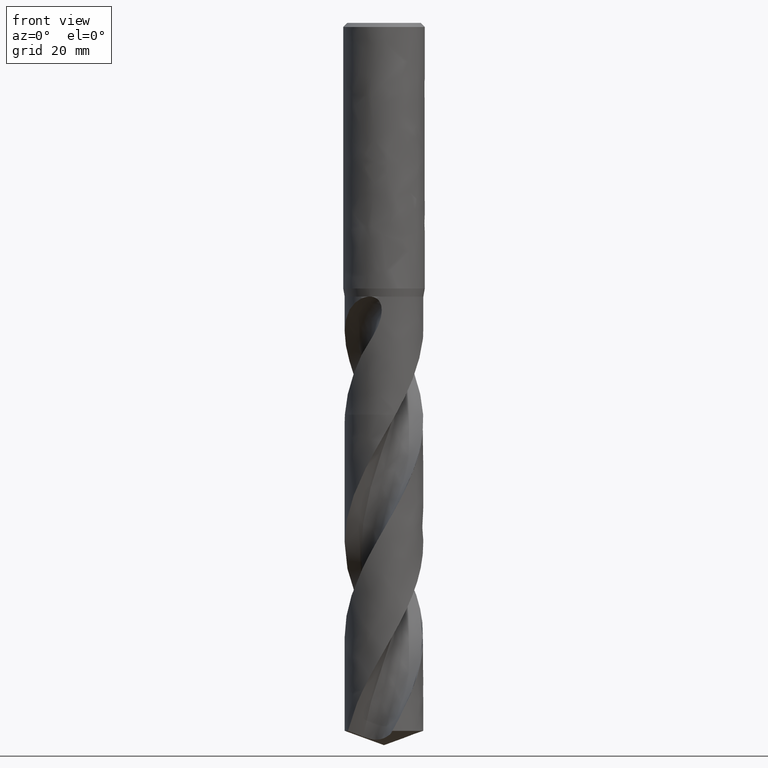
[diagram: clean part render]
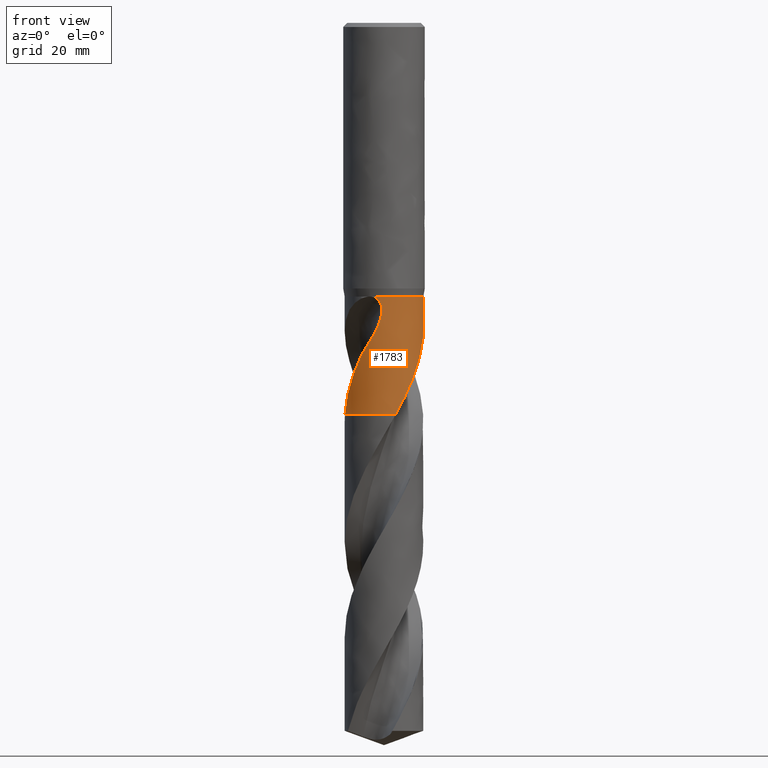
[diagram: same view with one face highlighted and labeled with its STEP entity id]
A machine part, front view. The second image highlights one B-rep face of the part: STEP entity #1783.
In plain terms, the highlighted face is a freeform B-spline surface patch.
Its self-contained STEP definition (entity closure, byte-faithful):
#201 = VERTEX_POINT('', #202);
#202 = CARTESIAN_POINT('', (-2.17123797644978, -6.39126166336681, -47.));
#212 = EDGE_CURVE('', #213, #201, #215, .T.);
#213 = VERTEX_POINT('', #214);
#214 = CARTESIAN_POINT('', (2.74245032595895, 6.16777643966184, -47.));
#215 = CIRCLE('', #216, 6.75);
#216 = AXIS2_PLACEMENT_3D('', #217, #218, #219);
#217 = CARTESIAN_POINT('', (1.76221774462768E-31, 2.87791997799628E-15, -47.));
#218 = DIRECTION('', (3.74939945665464E-33, 6.12323399573677E-17, -1.));
#219 = DIRECTION('', (-1., 6.12323399573677E-17, 0.));
#615 = VERTEX_POINT('', #616);
#616 = CARTESIAN_POINT('', (1.98991842690934, -6.45001741503437, -67.25));
#625 = VERTEX_POINT('', #626);
#626 = CARTESIAN_POINT('', (6.54722670223356, 1.64204826651347, -50.9853289528982));
#646 = EDGE_CURVE('', #625, #615, #647, .T.);
#647 = B_SPLINE_CURVE_WITH_KNOTS('', 3, (#648, #649, #650, #651, #652, #653, #654, #655, #656, #657, #658, #659, #660, #661, #662, #663, #664, #665, #666, #667, #668, #669, #670, #671, #672, #673, #674, #675, #676, #677, #678, #679, #680, #681, #682, #683, #684, #685, #686, #687, #688, #689, #690, #691, #692, #693, #694, #695, #696, #697, #698, #699, #700, #701, #702, #703, #704, #705, #706, #707, #708, #709, #710, #711, #712, #713, #714, #715, #716, #717, #718, #719, #720, #721, #722, #723, #724, #725, #726, #727, #728, #729, #730, #731, #732, #733, #734, #735, #736, #737, #738, #739, #740, #741, #742, #743, #744, #745, #746, #747, #748, #749, #750, #751, #752, #753, #754, #755, #756, #757, #758, #759, #760, #761, #762, #763, #764, #765, #766, #767, #768, #769, #770, #771, #772, #773, #774, #775, #776, #777), .UNSPECIFIED., .F., .U., (4, 3, 3, 3, 3, 3, 3, 3, 3, 3, 3, 3, 3, 3, 3, 3, 3, 3, 3, 3, 3, 3, 3, 3, 3, 3, 3, 3, 3, 3, 3, 3, 3, 3, 3, 3, 3, 3, 3, 3, 3, 3, 3, 4), (0., 0.441659259792527, 0.883358618652076, 1.32509893262151, 1.76688747682573, 2.20873352795271, 2.50366083464109, 2.63490343215148, 2.69327887594212, 3.13659202157276, 3.57992744371485, 4.02328826139101, 4.46667450764319, 4.91009479650226, 5.35355781797523, 5.79706087922181, 6.24059365971871, 6.90611624885697, 7.34966539350742, 7.79324669688905, 8.23690734077877, 8.68061047666921, 8.81200027509415, 9.10767917487095, 9.40329065552441, 9.69886873049771, 9.99444869020769, 10.1915153503296, 10.3885970723269, 11.0538396738529, 11.7188969532342, 12.3838767781517, 13.0488495814658, 13.7137935688705, 14.378673851582, 14.6742139156668, 15.33906726397, 15.7823476384415, 16.0778757002458, 17.0747419749422, 17.5179533065512, 18.5146207886474, 19.179196493635, 19.2558276770651), .UNSPECIFIED.);
#648 = CARTESIAN_POINT('', (6.54722670223356, 1.64204826651347, -50.9853289528982));
#649 = CARTESIAN_POINT('', (6.57033550230153, 1.54990812913318, -51.0978004345908));
#650 = CARTESIAN_POINT('', (6.59139075969727, 1.45771055317507, -51.2106655372283));
#651 = CARTESIAN_POINT('', (6.6104250138657, 1.36556989424147, -51.3238973873885));
#652 = CARTESIAN_POINT('', (6.62946099618953, 1.27342086968579, -51.4371395180793));
#653 = CARTESIAN_POINT('', (6.64647930102663, 1.18131073341557, -51.5507704620955));
#654 = CARTESIAN_POINT('', (6.66151691381575, 1.08935412375712, -51.6647680219585));
#655 = CARTESIAN_POINT('', (6.67655592091771, 0.99738898772666, -51.7787761518676));
#656 = CARTESIAN_POINT('', (6.68961661730424, 0.905560371151966, -51.8931726687468));
#657 = CARTESIAN_POINT('', (6.70074106521046, 0.813983523790398, -52.0079399957663));
#658 = CARTESIAN_POINT('', (6.71186672770977, 0.722396677855665, -52.1227198533494));
#659 = CARTESIAN_POINT('', (6.72105813464683, 0.6310433558927, -52.2378900716458));
#660 = CARTESIAN_POINT('', (6.72836352375575, 0.540022492302915, -52.3534243959934));
#661 = CARTESIAN_POINT('', (6.73566986379573, 0.448989780669897, -52.4689737592631));
#662 = CARTESIAN_POINT('', (6.74109095769716, 0.358273567187202, -52.5849075114671));
#663 = CARTESIAN_POINT('', (6.7446787187063, 0.26797197881563, -52.7012034428343));
#664 = CARTESIAN_POINT('', (6.74707350912882, 0.207696676637005, -52.7788296787811));
#665 = CARTESIAN_POINT('', (6.74865181309003, 0.147600393944889, -52.8566246804418));
#666 = CARTESIAN_POINT('', (6.74943008888581, 0.0877124577408922, -52.9345830601401));
#667 = CARTESIAN_POINT('', (6.74977642147252, 0.0610623370884393, -52.9692745248409));
#668 = CARTESIAN_POINT('', (6.74996435313332, 0.0344528442127917, -53.0039991784727));
#669 = CARTESIAN_POINT('', (6.74999539272162, 0.00788658588662205, -53.0387566173201));
#670 = CARTESIAN_POINT('', (6.75000919883165, -0.00392983004132642, -53.0542163914806));
#671 = CARTESIAN_POINT('', (6.74999196639971, -0.0157377471028731, -53.069682724052));
#672 = CARTESIAN_POINT('', (6.7499438306721, -0.0275369346806625, -53.0851555824996));
#673 = CARTESIAN_POINT('', (6.74957827968974, -0.11714199155621, -53.2026591268822));
#674 = CARTESIAN_POINT('', (6.74743004042985, -0.206249258950493, -53.3205513524663));
#675 = CARTESIAN_POINT('', (6.7435606767747, -0.29477007761681, -53.4388111320839));
#676 = CARTESIAN_POINT('', (6.73969111868381, -0.383295344459434, -53.5570768542623));
#677 = CARTESIAN_POINT('', (6.73409963328068, -0.471249222706473, -53.6757279061008));
#678 = CARTESIAN_POINT('', (6.72685094338631, -0.558548462949243, -53.7947437728565));
#679 = CARTESIAN_POINT('', (6.71960183826604, -0.645852703944759, -53.913766457185));
#680 = CARTESIAN_POINT('', (6.71069419161198, -0.732515570634826, -54.0331719560921));
#681 = CARTESIAN_POINT('', (6.70019650791113, -0.818453881031668, -54.1529441767806));
#682 = CARTESIAN_POINT('', (6.68969822212471, -0.904397120345932, -54.2727232669012));
#683 = CARTESIAN_POINT('', (6.67760823024899, -0.98962762748772, -54.3928870746367));
#684 = CARTESIAN_POINT('', (6.66399946250878, -1.07406292352128, -54.5134232395114));
#685 = CARTESIAN_POINT('', (6.65038964990546, -1.15850470238469, -54.6339686589928));
#686 = CARTESIAN_POINT('', (6.63525871391712, -1.24216561566307, -54.754901523933));
#687 = CARTESIAN_POINT('', (6.61867959298266, -1.32498318685007, -54.8761995941006));
#688 = CARTESIAN_POINT('', (6.6020988743108, -1.40780873920388, -54.9975093538181));
#689 = CARTESIAN_POINT('', (6.58406738723874, -1.4898020924944, -55.1192006386028));
#690 = CARTESIAN_POINT('', (6.56466072067571, -1.57090089516108, -55.2412556084158));
#691 = CARTESIAN_POINT('', (6.54525230190675, -1.65200702014673, -55.3633215984337));
#692 = CARTESIAN_POINT('', (6.52446583364698, -1.7322290831982, -55.4857670195569));
#693 = CARTESIAN_POINT('', (6.50238100718414, -1.81150248065289, -55.6085798244448));
#694 = CARTESIAN_POINT('', (6.48029470081159, -1.89078119023763, -55.7314008590493));
#695 = CARTESIAN_POINT('', (6.45690756971993, -1.96911941654286, -55.8546056997145));
#696 = CARTESIAN_POINT('', (6.4323021382924, -2.04645772048184, -55.9781827394591));
#697 = CARTESIAN_POINT('', (6.39538159678886, -2.1625041336001, -56.1636105478766));
#698 = CARTESIAN_POINT('', (6.35570925811324, -2.27632390694716, -56.3499176353156));
#699 = CARTESIAN_POINT('', (6.31357004745634, -2.38774648065119, -56.5370610709777));
#700 = CARTESIAN_POINT('', (6.28548563507401, -2.46200599951315, -56.6617860798198));
#701 = CARTESIAN_POINT('', (6.25630173093824, -2.53521209414286, -56.786900202036));
#702 = CARTESIAN_POINT('', (6.22610414195687, -2.60732184693573, -56.9123905497245));
#703 = CARTESIAN_POINT('', (6.19590436355375, -2.67943682791624, -57.0378899958645));
#704 = CARTESIAN_POINT('', (6.16468740433478, -2.75046415303915, -57.1637785453494));
#705 = CARTESIAN_POINT('', (6.13252804167253, -2.82039001170069, -57.2900277345051));
#706 = CARTESIAN_POINT('', (6.10036292687385, -2.89032837754661, -57.4162995050337));
#707 = CARTESIAN_POINT('', (6.06725118333088, -2.9591725210097, -57.5429447149728));
#708 = CARTESIAN_POINT('', (6.03328024355398, -3.02688445480538, -57.6699549465762));
#709 = CARTESIAN_POINT('', (5.9993060501795, -3.09460287377295, -57.7969773426998));
#710 = CARTESIAN_POINT('', (5.96446848862411, -3.16119589849242, -57.9243772178282));
#711 = CARTESIAN_POINT('', (5.92887693965792, -3.2265954556458, -58.0521694662872));
#712 = CARTESIAN_POINT('', (5.91833753602058, -3.24596163527449, -58.0900114295441));
#713 = CARTESIAN_POINT('', (5.90773200379999, -3.26522331433245, -58.1278886749834));
#714 = CARTESIAN_POINT('', (5.89706368432558, -3.28437816077996, -58.165802009613));
#715 = CARTESIAN_POINT('', (5.87305575522854, -3.32748412479612, -58.2511219751243));
#716 = CARTESIAN_POINT('', (5.84873081932889, -3.37004754198569, -58.3366292229553));
#717 = CARTESIAN_POINT('', (5.8241084351836, -3.41207575168303, -58.422311012717));
#718 = CARTESIAN_POINT('', (5.79949166530281, -3.4540943783325, -58.5079732657747));
#719 = CARTESIAN_POINT('', (5.77457688417877, -3.49557976171808, -58.5938135115919));
#720 = CARTESIAN_POINT('', (5.74936219134844, -3.53657099358871, -58.679799034321));
#721 = CARTESIAN_POINT('', (5.72415034791342, -3.57755759323066, -58.7657748402256));
#722 = CARTESIAN_POINT('', (5.69863798037958, -3.61805177374847, -58.8518989676546));
#723 = CARTESIAN_POINT('', (5.67279758801343, -3.65812349783725, -58.9381190850952));
#724 = CARTESIAN_POINT('', (5.6469570308775, -3.69819547744108, -59.0243397523134));
#725 = CARTESIAN_POINT('', (5.62078778382959, -3.73784650116007, -59.1106589873538));
#726 = CARTESIAN_POINT('', (5.59423402847128, -3.77717429233733, -59.1970055235641));
#727 = CARTESIAN_POINT('', (5.57653032525916, -3.80339459653142, -59.254573781983));
#728 = CARTESIAN_POINT('', (5.55865484651865, -3.82947219293634, -59.3121546414066));
#729 = CARTESIAN_POINT('', (5.54058381690969, -3.85544173445773, -59.3697224330863));
#730 = CARTESIAN_POINT('', (5.52251140612547, -3.88141326084048, -59.427294624693));
#731 = CARTESIAN_POINT('', (5.5042385259721, -3.90728339653807, -59.4848500727084));
#732 = CARTESIAN_POINT('', (5.48576406058995, -3.93305131819299, -59.5423861292558));
#733 = CARTESIAN_POINT('', (5.42340413553924, -4.02003005505358, -59.736597117222));
#734 = CARTESIAN_POINT('', (5.35875873263365, -4.10582403916798, -59.9306221165307));
#735 = CARTESIAN_POINT('', (5.29193931840753, -4.19021219633235, -60.1244926237717));
#736 = CARTESIAN_POINT('', (5.22513851861939, -4.27457684478843, -60.3183091228988));
#737 = CARTESIAN_POINT('', (5.15615686244505, -4.35754868076348, -60.5119977947778));
#738 = CARTESIAN_POINT('', (5.0850720288435, -4.43897988973519, -60.7055448968811));
#739 = CARTESIAN_POINT('', (5.01399547398401, -4.52040161499651, -60.899069457938));
#740 = CARTESIAN_POINT('', (4.94080122711018, -4.60030129056725, -61.0924745667885));
#741 = CARTESIAN_POINT('', (4.86554500459517, -4.67856514417177, -61.2857215587941));
#742 = CARTESIAN_POINT('', (4.79028957671982, -4.75682817137867, -61.4789665102811));
#743 = CARTESIAN_POINT('', (4.71296166817493, -4.83346616342799, -61.6720808443089));
#744 = CARTESIAN_POINT('', (4.63362794120483, -4.9083594104839, -61.8650296806307));
#745 = CARTESIAN_POINT('', (4.55429765207981, -4.98324941211834, -62.057970155714));
#746 = CARTESIAN_POINT('', (4.47294814113563, -5.05640659172576, -62.2507716439872));
#747 = CARTESIAN_POINT('', (4.38968789988598, -5.12768370139916, -62.4434245440602));
#748 = CARTESIAN_POINT('', (4.30643563535051, -5.19895398239753, -62.6360589870989));
#749 = CARTESIAN_POINT('', (4.22126108481105, -5.26835455906016, -62.8285733101865));
#750 = CARTESIAN_POINT('', (4.13429062848189, -5.33574184151059, -63.0209622782657));
#751 = CARTESIAN_POINT('', (4.09563215882149, -5.36569556745457, -63.1064793998194));
#752 = CARTESIAN_POINT('', (4.05661763372699, -5.39525275625711, -63.1919761295374));
#753 = CARTESIAN_POINT('', (4.01725746630399, -5.42440249699677, -63.277450984837));
#754 = CARTESIAN_POINT('', (3.92871197863214, -5.48997838699649, -63.4697370761244));
#755 = CARTESIAN_POINT('', (3.83839763898776, -5.5535044477366, -63.6619268577205));
#756 = CARTESIAN_POINT('', (3.746488930802, -5.61483042409813, -63.854037127154));
#757 = CARTESIAN_POINT('', (3.68521026433254, -5.65571854150892, -63.982123587712));
#758 = CARTESIAN_POINT('', (3.62321996769768, -5.69563081614675, -64.1101867890969));
#759 = CARTESIAN_POINT('', (3.56059813879968, -5.73451313486822, -64.2382482053169));
#760 = CARTESIAN_POINT('', (3.51884914925119, -5.76043536592551, -64.3236247396887));
#761 = CARTESIAN_POINT('', (3.47682056963268, -5.78589937425845, -64.4090053669799));
#762 = CARTESIAN_POINT('', (3.43453388991661, -5.81089295711203, -64.494394185612));
#763 = CARTESIAN_POINT('', (3.29189374731736, -5.89520055104561, -64.7824251529954));
#764 = CARTESIAN_POINT('', (3.14626566968931, -5.97418626825024, -65.0705983878582));
#765 = CARTESIAN_POINT('', (2.99798799832654, -6.04769112652837, -65.3587417321024));
#766 = CARTESIAN_POINT('', (2.9320630635176, -6.08037172466287, -65.4868515884977));
#767 = CARTESIAN_POINT('', (2.86560441999081, -6.111974034321, -65.6149675208223));
#768 = CARTESIAN_POINT('', (2.79863892179458, -6.14248485430908, -65.7430728124562));
#769 = CARTESIAN_POINT('', (2.64805086207087, -6.21109578540558, -66.0311484309032));
#770 = CARTESIAN_POINT('', (2.49487319878219, -6.2741935314925, -66.3192477116871));
#771 = CARTESIAN_POINT('', (2.33961420930109, -6.3315642104962, -66.6073015901836));
#772 = CARTESIAN_POINT('', (2.23608785347674, -6.36981885422583, -66.7993752885986));
#773 = CARTESIAN_POINT('', (2.13162123096658, -6.40553414951849, -66.9914669966747));
#774 = CARTESIAN_POINT('', (2.02636238492351, -6.43866100093545, -67.1835519174385));
#775 = CARTESIAN_POINT('', (2.01422515228284, -6.44248080627643, -67.2057009287351));
#776 = CARTESIAN_POINT('', (2.00207680632446, -6.44626638900099, -67.2278508319766));
#777 = CARTESIAN_POINT('', (1.98991842690934, -6.45001741503437, -67.25));
#1012 = EDGE_CURVE('', #625, #213, #1013, .T.);
#1013 = B_SPLINE_CURVE_WITH_KNOTS('', 3, (#1014, #1015, #1016, #1017, #1018, #1019, #1020, #1021, #1022, #1023, #1024, #1025, #1026, #1027, #1028, #1029, #1030, #1031, #1032, #1033, #1034, #1035, #1036, #1037, #1038, #1039, #1040, #1041, #1042, #1043, #1044, #1045, #1046, #1047, #1048, #1049, #1050, #1051, #1052, #1053, #1054, #1055, #1056, #1057, #1058, #1059, #1060, #1061, #1062, #1063, #1064, #1065, #1066, #1067, #1068, #1069, #1070, #1071), .UNSPECIFIED., .F., .U., (4, 3, 3, 3, 3, 3, 3, 3, 3, 3, 3, 3, 3, 3, 3, 3, 3, 3, 3, 4), (0., 0.447005675161445, 0.894185619436534, 1.34151582994481, 1.78897778587421, 2.23655197864527, 2.6842086120813, 3.13192121736932, 3.57966739757167, 4.02742049961438, 4.47514763869664, 4.92280671514512, 5.37034191744389, 5.66765224759956, 5.96487297666361, 6.26197587823821, 6.55892470282941, 6.8556727072708, 7.15215970033951, 7.45692063994907), .UNSPECIFIED.);
#1014 = CARTESIAN_POINT('', (6.54722670223356, 1.64204826651348, -50.9853289528982));
#1015 = CARTESIAN_POINT('', (6.52383816333729, 1.73530378738379, -50.871495970807));
#1016 = CARTESIAN_POINT('', (6.49805232952242, 1.82967051163066, -50.7590243652782));
#1017 = CARTESIAN_POINT('', (6.46970892616913, 1.92493283276297, -50.6480139811013));
#1018 = CARTESIAN_POINT('', (6.44135447288951, 2.02023229275321, -50.5369603185448));
#1019 = CARTESIAN_POINT('', (6.41042866490252, 2.11646671921944, -50.4273199216285));
#1020 = CARTESIAN_POINT('', (6.37678460914436, 2.21339514063379, -50.3191911248318));
#1021 = CARTESIAN_POINT('', (6.34312924794733, 2.31035613298287, -50.2110259934294));
#1022 = CARTESIAN_POINT('', (6.30673833457635, 2.40805596596319, -50.1043238123564));
#1023 = CARTESIAN_POINT('', (6.2674758259275, 2.5062415628619, -49.9991959996608));
#1024 = CARTESIAN_POINT('', (6.22820175388406, 2.60445607688381, -49.8940372252558));
#1025 = CARTESIAN_POINT('', (6.18603491741344, 2.70320515293543, -49.790401652276));
#1026 = CARTESIAN_POINT('', (6.14085072235636, 2.80222276161941, -49.688417275917));
#1027 = CARTESIAN_POINT('', (6.09565519375175, 2.90126520688116, -49.5864073188261));
#1028 = CARTESIAN_POINT('', (6.04741614879518, 3.00063003343426, -49.485995281843));
#1029 = CARTESIAN_POINT('', (5.99602227382602, 3.10003498234869, -49.3873271569904));
#1030 = CARTESIAN_POINT('', (5.94461893239232, 3.19945824109917, -49.2886408580205));
#1031 = CARTESIAN_POINT('', (5.89003033678812, 3.29897772345852, -49.1916389227777));
#1032 = CARTESIAN_POINT('', (5.83216335795116, 3.39828935880637, -49.0964817615112));
#1033 = CARTESIAN_POINT('', (5.77428914383223, 3.49761341138595, -49.0013127024593));
#1034 = CARTESIAN_POINT('', (5.71309861062836, 3.59679313478255, -48.9079277478441));
#1035 = CARTESIAN_POINT('', (5.64851279380134, 3.69551122556307, -48.8165206764602));
#1036 = CARTESIAN_POINT('', (5.58392213354743, 3.79423671942182, -48.725106750267));
#1037 = CARTESIAN_POINT('', (5.51588995973561, 3.89257019230152, -48.6356061370521));
#1038 = CARTESIAN_POINT('', (5.44435316938206, 3.99017776133339, -48.5482537900581));
#1039 = CARTESIAN_POINT('', (5.37281527312016, 4.08778683930947, -48.4609000926584));
#1040 = CARTESIAN_POINT('', (5.29771621088348, 4.18474670410529, -48.3756255492759));
#1041 = CARTESIAN_POINT('', (5.21901158006885, 4.28070299449837, -48.2927169093362));
#1042 = CARTESIAN_POINT('', (5.14031151294168, 4.37665372086663, -48.2098130768534));
#1043 = CARTESIAN_POINT('', (5.05793629823484, 4.47168589548326, -48.1292007283162));
#1044 = CARTESIAN_POINT('', (4.97186494167331, 4.56541991516223, -48.0512331515216));
#1045 = CARTESIAN_POINT('', (4.88580666951678, 4.65913968557262, -47.9732774272106));
#1046 = CARTESIAN_POINT('', (4.79596590011326, 4.75165631556474, -47.8978858022151));
#1047 = CARTESIAN_POINT('', (4.70235297370281, 4.8425588804586, -47.8254989233641));
#1048 = CARTESIAN_POINT('', (4.6087659514285, 4.93343629121502, -47.7531320750756));
#1049 = CARTESIAN_POINT('', (4.51129825753647, 5.02280692739476, -47.6836818578372));
#1050 = CARTESIAN_POINT('', (4.41000527842591, 5.11022048881021, -47.6177061280667));
#1051 = CARTESIAN_POINT('', (4.34271347901633, 5.16829179732631, -47.5738765792411));
#1052 = CARTESIAN_POINT('', (4.27368461828996, 5.22554217842249, -47.5315496124812));
#1053 = CARTESIAN_POINT('', (4.20295108385998, 5.2818275423077, -47.4909267444121));
#1054 = CARTESIAN_POINT('', (4.13223886655644, 5.33809594334455, -47.4503161189493));
#1055 = CARTESIAN_POINT('', (4.05977385982401, 5.39343871954625, -47.4113801304974));
#1056 = CARTESIAN_POINT('', (3.98560704696646, 5.44770010804297, -47.3743590672945));
#1057 = CARTESIAN_POINT('', (3.91146963612736, 5.50193998564708, -47.3373526803861));
#1058 = CARTESIAN_POINT('', (3.83557245849918, 5.55514229974721, -47.3022298506109));
#1059 = CARTESIAN_POINT('', (3.75799298562601, 5.60713730168842, -47.2692793143132));
#1060 = CARTESIAN_POINT('', (3.68045374531566, 5.65910533912337, -47.2363458660992));
#1061 = CARTESIAN_POINT('', (3.60116138117259, 5.70991533084473, -47.2055513822662));
#1062 = CARTESIAN_POINT('', (3.52023206356116, 5.7593807148578, -47.1772451276677));
#1063 = CARTESIAN_POINT('', (3.43935747671928, 5.80881264648781, -47.1489580159847));
#1064 = CARTESIAN_POINT('', (3.35675791648746, 5.8569560061402, -47.1231240263672));
#1065 = CARTESIAN_POINT('', (3.27260731757886, 5.9036040979159, -47.100167380578));
#1066 = CARTESIAN_POINT('', (3.18853073521967, 5.95021115931469, -47.0772309268222));
#1067 = CARTESIAN_POINT('', (3.10279164458079, 5.99538747516859, -47.0571356852069));
#1068 = CARTESIAN_POINT('', (3.01565156437778, 6.03890268527867, -47.0403963992122));
#1069 = CARTESIAN_POINT('', (2.92607970004252, 6.08363225733575, -47.0231899765109));
#1070 = CARTESIAN_POINT('', (2.83486815396568, 6.12668362363309, -47.0094994745342));
#1071 = CARTESIAN_POINT('', (2.74245032595895, 6.16777643966184, -47.));
#1227 = EDGE_CURVE('', #1228, #1230, #1232, .T.);
#1228 = VERTEX_POINT('', #1229);
#1229 = CARTESIAN_POINT('', (-3.8737926401678, -5.52776904193561, -57.0572358756335));
#1230 = VERTEX_POINT('', #1231);
#1231 = CARTESIAN_POINT('', (-5.18745572070359, -4.31888911014621, -60.1904486721386));
#1232 = B_SPLINE_CURVE_WITH_KNOTS('', 3, (#1233, #1234, #1235, #1236, #1237, #1238, #1239, #1240, #1241, #1242, #1243, #1244, #1245, #1246, #1247, #1248, #1249, #1250, #1251, #1252, #1253, #1254, #1255, #1256, #1257, #1258, #1259, #1260, #1261, #1262, #1263, #1264, #1265, #1266), .UNSPECIFIED., .F., .U., (4, 3, 3, 3, 3, 3, 3, 3, 3, 3, 3, 4), (0., 0.443483526534407, 0.887057225145605, 1.18272687153556, 1.31410859012559, 1.60974740152709, 1.90531945864664, 2.20085826691173, 2.49639945370116, 2.69344945750672, 2.8905135878103, 3.61019777291354), .UNSPECIFIED.);
#1233 = CARTESIAN_POINT('', (-3.8737926401678, -5.52776904193561, -57.0572358756335));
#1234 = CARTESIAN_POINT('', (-3.94011775237627, -5.48128921805326, -57.1809034800635));
#1235 = CARTESIAN_POINT('', (-4.00478574835998, -5.43418981913005, -57.3052411097825));
#1236 = CARTESIAN_POINT('', (-4.06776299539615, -5.38663199163347, -57.4302418710706));
#1237 = CARTESIAN_POINT('', (-4.13075304739309, -5.33906449435703, -57.5552680483607));
#1238 = CARTESIAN_POINT('', (-4.1920622529721, -5.29102985124793, -57.680977599688));
#1239 = CARTESIAN_POINT('', (-4.25163471795563, -5.24271897254461, -57.8073862183428));
#1240 = CARTESIAN_POINT('', (-4.29134349625201, -5.21051674669641, -57.8916454782929));
#1241 = CARTESIAN_POINT('', (-4.33028380955966, -5.17818947536795, -57.9762234773229));
#1242 = CARTESIAN_POINT('', (-4.36843222793257, -5.14580410334093, -58.061130951464));
#1243 = CARTESIAN_POINT('', (-4.3853835952052, -5.13141356347308, -58.0988598492728));
#1244 = CARTESIAN_POINT('', (-4.40217891677651, -5.1170113488878, -58.1366547972303));
#1245 = CARTESIAN_POINT('', (-4.41881580898132, -5.10260392802505, -58.174516998194));
#1246 = CARTESIAN_POINT('', (-4.45625260832929, -5.07018394733874, -58.2597155799302));
#1247 = CARTESIAN_POINT('', (-4.49288842076691, -5.03773727131538, -58.3452596900048));
#1248 = CARTESIAN_POINT('', (-4.52878270886957, -5.0052599508761, -58.431097858448));
#1249 = CARTESIAN_POINT('', (-4.56466889215873, -4.97278996371013, -58.5169166449119));
#1250 = CARTESIAN_POINT('', (-4.59981626850531, -4.9402875942309, -58.6030348905061));
#1251 = CARTESIAN_POINT('', (-4.63431348532483, -4.90771214719613, -58.6893816600459));
#1252 = CARTESIAN_POINT('', (-4.66880682155782, -4.87514036456831, -58.7757187164511));
#1253 = CARTESIAN_POINT('', (-4.70265210009609, -4.84249408306002, -58.8622884259374));
#1254 = CARTESIAN_POINT('', (-4.73596486309444, -4.80969196680358, -58.9490010522802));
#1255 = CARTESIAN_POINT('', (-4.76927789419706, -4.77688958655259, -59.0357143764944));
#1256 = CARTESIAN_POINT('', (-4.80206000126258, -4.74393018323703, -59.1225735351523));
#1257 = CARTESIAN_POINT('', (-4.8344482512218, -4.71069104338827, -59.2094706906543));
#1258 = CARTESIAN_POINT('', (-4.8560428886632, -4.68852908110869, -59.2674087567777));
#1259 = CARTESIAN_POINT('', (-4.87746319772268, -4.66624157466261, -59.325364164313));
#1260 = CARTESIAN_POINT('', (-4.89875330799156, -4.64378251293509, -59.3833005276393));
#1261 = CARTESIAN_POINT('', (-4.92004494454663, -4.62132184111935, -59.4412410444185));
#1262 = CARTESIAN_POINT('', (-4.94121240509701, -4.59868278208484, -59.4991584593524));
#1263 = CARTESIAN_POINT('', (-4.96225330556846, -4.57586517845257, -59.5570510886077));
#1264 = CARTESIAN_POINT('', (-5.03909531271767, -4.4925345974341, -59.7684767277885));
#1265 = CARTESIAN_POINT('', (-5.11423489099704, -4.40683529312266, -59.9796083067064));
#1266 = CARTESIAN_POINT('', (-5.18745572070359, -4.31888911014621, -60.1904486721386));
#1296 = VERTEX_POINT('', #1297);
#1297 = CARTESIAN_POINT('', (-6.71701838527332, -0.666456309070734, -67.25));
#1304 = EDGE_CURVE('', #1230, #1296, #1305, .T.);
#1305 = B_SPLINE_CURVE_WITH_KNOTS('', 3, (#1306, #1307, #1308, #1309, #1310, #1311, #1312, #1313, #1314, #1315, #1316, #1317, #1318, #1319, #1320, #1321, #1322, #1323, #1324, #1325, #1326, #1327, #1328, #1329, #1330, #1331, #1332, #1333, #1334, #1335, #1336, #1337, #1338, #1339, #1340, #1341, #1342, #1343, #1344, #1345, #1346, #1347, #1348, #1349, #1350, #1351), .UNSPECIFIED., .F., .U., (4, 3, 3, 3, 3, 3, 3, 3, 3, 3, 3, 3, 3, 3, 3, 4), (0., 0.443322495899435, 0.886607032329049, 1.55142846746694, 2.2162179070127, 2.88094727961477, 3.32414938394597, 3.76733655054551, 4.21053520502023, 4.65372307709331, 4.94920949350656, 5.61374677102459, 6.27824074149479, 7.27444952689723, 7.93881647012239, 8.12340381640079), .UNSPECIFIED.);
#1306 = CARTESIAN_POINT('', (-5.18745572070359, -4.31888911014621, -60.1904486721386));
#1307 = CARTESIAN_POINT('', (-5.23255945043565, -4.26471462340748, -60.320325469454));
#1308 = CARTESIAN_POINT('', (-5.27696470528058, -4.20965287196573, -60.4500798026125));
#1309 = CARTESIAN_POINT('', (-5.32062456864377, -4.15372774740284, -60.5797077344166));
#1310 = CARTESIAN_POINT('', (-5.36428069363302, -4.09780741142636, -60.7093245668345));
#1311 = CARTESIAN_POINT('', (-5.40719593969398, -4.04101820672637, -60.8388212621043));
#1312 = CARTESIAN_POINT('', (-5.44932354246726, -3.98338711770675, -60.9681943162301));
#1313 = CARTESIAN_POINT('', (-5.51250493282261, -3.89695418318759, -61.1622231452184));
#1314 = CARTESIAN_POINT('', (-5.57392086849325, -3.80861809049205, -61.3559970830385));
#1315 = CARTESIAN_POINT('', (-5.63342060237858, -3.71847715021871, -61.549501913184));
#1316 = CARTESIAN_POINT('', (-5.6929174727443, -3.62834054812192, -61.7429974306008));
#1317 = CARTESIAN_POINT('', (-5.75050910330292, -3.53638267722435, -61.9362489244888));
#1318 = CARTESIAN_POINT('', (-5.80604736686905, -3.44271897977087, -62.1292453310374));
#1319 = CARTESIAN_POINT('', (-5.86158061228425, -3.34906374528582, -62.3222242994265));
#1320 = CARTESIAN_POINT('', (-5.91506526129088, -3.25369474207618, -62.5149800193583));
#1321 = CARTESIAN_POINT('', (-5.96635233420531, -3.15676097038153, -62.707514708675));
#1322 = CARTESIAN_POINT('', (-6.00054751133684, -3.09213128292292, -62.8358854155806));
#1323 = CARTESIAN_POINT('', (-6.03376895398541, -3.02680088372566, -62.9641684226657));
#1324 = CARTESIAN_POINT('', (-6.06597649399452, -2.96081562653028, -63.092363450771));
#1325 = CARTESIAN_POINT('', (-6.09818294847723, -2.89483259330915, -63.2205541581773));
#1326 = CARTESIAN_POINT('', (-6.1293786869943, -2.82818799388666, -63.3486640225721));
#1327 = CARTESIAN_POINT('', (-6.1595205628668, -2.76094303375152, -63.4767009567124));
#1328 = CARTESIAN_POINT('', (-6.18966322004827, -2.69369633055664, -63.604741209704));
#1329 = CARTESIAN_POINT('', (-6.21875371865611, -2.62584467601466, -63.7327171986797));
#1330 = CARTESIAN_POINT('', (-6.24674528747483, -2.55747401030998, -63.8606504992893));
#1331 = CARTESIAN_POINT('', (-6.27473617529793, -2.4891050079677, -63.9885806874611));
#1332 = CARTESIAN_POINT('', (-6.3016298221982, -2.42021234590782, -64.1164768497568));
#1333 = CARTESIAN_POINT('', (-6.32737969800506, -2.35090751780528, -64.2443741836839));
#1334 = CARTESIAN_POINT('', (-6.34454789913309, -2.30469994628405, -64.3296471057388));
#1335 = CARTESIAN_POINT('', (-6.3612071496803, -2.2583114131598, -64.41492614548));
#1336 = CARTESIAN_POINT('', (-6.37734911431886, -2.21176813298693, -64.5002169309143));
#1337 = CARTESIAN_POINT('', (-6.41365175511333, -2.10709413453962, -64.6920325379999));
#1338 = CARTESIAN_POINT('', (-6.44734867683898, -2.00160888673902, -64.8839178900426));
#1339 = CARTESIAN_POINT('', (-6.47841898311349, -1.89541221881543, -65.0758154111083));
#1340 = CARTESIAN_POINT('', (-6.50948726457571, -1.78922247159339, -65.267700426457));
#1341 = CARTESIAN_POINT('', (-6.53793446832971, -1.68230515730875, -65.4596264446667));
#1342 = CARTESIAN_POINT('', (-6.56374245402018, -1.57473330989508, -65.6515212209429));
#1343 = CARTESIAN_POINT('', (-6.60243376383024, -1.41346168935707, -65.9392097034492));
#1344 = CARTESIAN_POINT('', (-6.63519723609327, -1.25067374018655, -66.2269103743257));
#1345 = CARTESIAN_POINT('', (-6.66191356972879, -1.08692575158655, -66.5145612908183));
#1346 = CARTESIAN_POINT('', (-6.67973056669941, -0.977722989836656, -66.7063943311473));
#1347 = CARTESIAN_POINT('', (-6.69486234179394, -0.868076315877112, -66.8982433380574));
#1348 = CARTESIAN_POINT('', (-6.70728776239558, -0.758149637221092, -67.0900879057658));
#1349 = CARTESIAN_POINT('', (-6.71074003442482, -0.727607669254097, -67.1433898949938));
#1350 = CARTESIAN_POINT('', (-6.71398383780436, -0.697040626245875, -67.196696875235));
#1351 = CARTESIAN_POINT('', (-6.71701838527332, -0.666456309070734, -67.25));
#1354 = EDGE_CURVE('', #1228, #201, #1355, .T.);
#1355 = B_SPLINE_CURVE_WITH_KNOTS('', 3, (#1356, #1357, #1358, #1359, #1360, #1361, #1362, #1363, #1364, #1365, #1366, #1367, #1368, #1369, #1370, #1371, #1372, #1373, #1374, #1375, #1376, #1377, #1378, #1379, #1380, #1381, #1382, #1383, #1384, #1385, #1386, #1387, #1388, #1389, #1390, #1391, #1392, #1393, #1394, #1395, #1396, #1397, #1398, #1399, #1400, #1401, #1402, #1403, #1404, #1405, #1406, #1407, #1408, #1409, #1410, #1411, #1412, #1413, #1414, #1415, #1416, #1417, #1418, #1419, #1420, #1421, #1422, #1423, #1424, #1425, #1426, #1427, #1428, #1429, #1430, #1431, #1432, #1433, #1434, #1435, #1436, #1437, #1438, #1439, #1440, #1441, #1442, #1443, #1444, #1445, #1446, #1447, #1448, #1449, #1450, #1451, #1452, #1453, #1454, #1455, #1456, #1457, #1458, #1459, #1460, #1461, #1462, #1463, #1464, #1465, #1466, #1467, #1468, #1469, #1470, #1471, #1472, #1473), .UNSPECIFIED., .F., .U., (4, 3, 3, 3, 3, 3, 3, 3, 3, 3, 3, 3, 3, 3, 3, 3, 3, 3, 3, 3, 3, 3, 3, 3, 3, 3, 3, 3, 3, 3, 3, 3, 3, 3, 3, 3, 3, 3, 3, 4), (0., 0.197017275695434, 0.640213026727463, 1.08326223483906, 1.52614046559948, 1.96882705650014, 2.41132286088462, 2.85363119329142, 3.29575577284397, 3.73768990085209, 4.17944159727816, 4.6210303804982, 5.06247458952747, 5.50380122508634, 5.94505486718475, 6.38628397998251, 6.82754792790252, 7.26894239894586, 7.71058975673982, 8.00554870894374, 8.30067858833429, 8.5960390467978, 8.79310162148612, 9.08902835786164, 9.28640288151484, 9.32534335015109, 9.52300075887349, 9.72089513743481, 9.91905869901922, 10.1175160292991, 10.3162744736453, 10.5153120844394, 10.7145673701716, 10.913938218402, 11.1132959630663, 11.3125119649147, 11.5114844060794, 11.7101527693812, 11.9084969608908, 11.9977415892307), .UNSPECIFIED.);
#1356 = CARTESIAN_POINT('', (-3.8737926401678, -5.52776904193561, -57.0572358756335));
#1357 = CARTESIAN_POINT('', (-3.84432775108923, -5.54841767424821, -57.0022966207147));
#1358 = CARTESIAN_POINT('', (-3.81457599010076, -5.56891592868017, -56.9474537066416));
#1359 = CARTESIAN_POINT('', (-3.78455348172066, -5.58924457722115, -56.8926973145499));
#1360 = CARTESIAN_POINT('', (-3.71701702786189, -5.63497442819886, -56.7695213126933));
#1361 = CARTESIAN_POINT('', (-3.64810210152141, -5.67984889805717, -56.6467731429346));
#1362 = CARTESIAN_POINT('', (-3.57801170127151, -5.72366423417413, -56.524330211667));
#1363 = CARTESIAN_POINT('', (-3.50794447645124, -5.76746508272595, -56.4019277662224));
#1364 = CARTESIAN_POINT('', (-3.43669439400152, -5.81021241833024, -56.2798155513104));
#1365 = CARTESIAN_POINT('', (-3.3644911348265, -5.85172619008049, -56.1578582428034));
#1366 = CARTESIAN_POINT('', (-3.29231573964891, -5.89322394122941, -56.035947998905));
#1367 = CARTESIAN_POINT('', (-3.21917982785218, -5.93349358120599, -55.9141786556292));
#1368 = CARTESIAN_POINT('', (-3.14533850966143, -5.97238190838804, -55.7924058494545));
#1369 = CARTESIAN_POINT('', (-3.07152914368434, -6.01125340802462, -55.6706857361463));
#1370 = CARTESIAN_POINT('', (-2.99700667599659, -6.04874899668077, -55.5489486640114));
#1371 = CARTESIAN_POINT('', (-2.92205426625909, -6.08474312235474, -55.4270423017278));
#1372 = CARTESIAN_POINT('', (-2.84713415907928, -6.12072173548783, -55.3051884779459));
#1373 = CARTESIAN_POINT('', (-2.77177674055466, -6.1552040828554, -55.1831510906455));
#1374 = CARTESIAN_POINT('', (-2.69627030744686, -6.18810362139993, -55.0607900006046));
#1375 = CARTESIAN_POINT('', (-2.62079586411208, -6.2209892214133, -54.938480751226));
#1376 = CARTESIAN_POINT('', (-2.5451632711564, -6.25229756680881, -54.8158333727693));
#1377 = CARTESIAN_POINT('', (-2.46966505903469, -6.28197854948455, -54.6927217729814));
#1378 = CARTESIAN_POINT('', (-2.39419821193813, -6.31164720147401, -54.5696613187547));
#1379 = CARTESIAN_POINT('', (-2.31885403995536, -6.33969445527025, -54.4461217591436));
#1380 = CARTESIAN_POINT('', (-2.24393725871369, -6.36610128563445, -54.3219867338101));
#1381 = CARTESIAN_POINT('', (-2.16905274895692, -6.3924967408753, -54.1979051814305));
#1382 = CARTESIAN_POINT('', (-2.09458729279089, -6.41725593163412, -54.0732077686219));
#1383 = CARTESIAN_POINT('', (-2.02086793401737, -6.44038762756251, -53.9477843964566));
#1384 = CARTESIAN_POINT('', (-1.947179006791, -6.46350977466537, -53.8224127993926));
#1385 = CARTESIAN_POINT('', (-1.87422251124553, -6.48500998018359, -53.6962943807077));
#1386 = CARTESIAN_POINT('', (-1.80233550286846, -6.50492788085308, -53.569336654309));
#1387 = CARTESIAN_POINT('', (-1.73047500563579, -6.5248384360181, -53.4424257485346));
#1388 = CARTESIAN_POINT('', (-1.65966820989109, -6.54317206046539, -53.3146507083584));
#1389 = CARTESIAN_POINT('', (-1.59026973336622, -6.55999559261585, -53.1859356762294));
#1390 = CARTESIAN_POINT('', (-1.52089397759188, -6.57681361681719, -53.0572627848256));
#1391 = CARTESIAN_POINT('', (-1.45291000164101, -6.59212629977711, -52.9276187834857));
#1392 = CARTESIAN_POINT('', (-1.38670221616771, -6.60602429330046, -52.7969438841047));
#1393 = CARTESIAN_POINT('', (-1.32051206435898, -6.61991858525677, -52.6663037884454));
#1394 = CARTESIAN_POINT('', (-1.25607730385153, -6.63240324566316, -52.5345956615855));
#1395 = CARTESIAN_POINT('', (-1.19380536489183, -6.64359306029172, -52.4017874697972));
#1396 = CARTESIAN_POINT('', (-1.13154372543356, -6.65478102417477, -52.2690012438925));
#1397 = CARTESIAN_POINT('', (-1.07142115242092, -6.66467880858804, -52.1350684313664));
#1398 = CARTESIAN_POINT('', (-1.01388426369552, -6.67342031493825, -51.999987135191));
#1399 = CARTESIAN_POINT('', (-0.956350573447147, -6.68216133534792, -51.8649133481881));
#1400 = CARTESIAN_POINT('', (-0.901376134610867, -6.68975024022903, -51.7286314858368));
#1401 = CARTESIAN_POINT('', (-0.849473711603073, -6.69633440124485, -51.5911751429627));
#1402 = CARTESIAN_POINT('', (-0.797567190889125, -6.70291908208145, -51.4537079478841));
#1403 = CARTESIAN_POINT('', (-0.748702808124832, -6.70850304434267, -51.3149892874629));
#1404 = CARTESIAN_POINT('', (-0.703464337917372, -6.7132434728139, -51.1751111841432));
#1405 = CARTESIAN_POINT('', (-0.658212486452607, -6.71798530347432, -51.0351917057531));
#1406 = CARTESIAN_POINT('', (-0.616553756701516, -6.72188726588264, -50.8940107357322));
#1407 = CARTESIAN_POINT('', (-0.579182758510351, -6.72510574877781, -50.7517408326816));
#1408 = CARTESIAN_POINT('', (-0.541790349470341, -6.72832607562829, -50.6093894193815));
#1409 = CARTESIAN_POINT('', (-0.508653994961064, -6.73086626478905, -50.4658099081943));
#1410 = CARTESIAN_POINT('', (-0.480626187403154, -6.73286703180616, -50.3213006470301));
#1411 = CARTESIAN_POINT('', (-0.461907513773705, -6.73420326564195, -50.224788578058));
#1412 = CARTESIAN_POINT('', (-0.44545696012061, -6.73529965940975, -50.1277983812117));
#1413 = CARTESIAN_POINT('', (-0.431578389513726, -6.73618884041301, -50.0304672538391));
#1414 = CARTESIAN_POINT('', (-0.417691776346986, -6.73707853669206, -49.9330797235817));
#1415 = CARTESIAN_POINT('', (-0.406369725341744, -6.73776182832631, -49.8352806535715));
#1416 = CARTESIAN_POINT('', (-0.397969559472723, -6.73825795215151, -49.7372645747432));
#1417 = CARTESIAN_POINT('', (-0.389562830722091, -6.73875446358833, -49.6391719179127));
#1418 = CARTESIAN_POINT('', (-0.384074577339882, -6.73906457471609, -49.5407715334656));
#1419 = CARTESIAN_POINT('', (-0.381927870307664, -6.73918623439672, -49.4423415289761));
#1420 = CARTESIAN_POINT('', (-0.380495601353752, -6.73926740494347, -49.3766696708939));
#1421 = CARTESIAN_POINT('', (-0.380551080869951, -6.73926433100634, -49.3109450365284));
#1422 = CARTESIAN_POINT('', (-0.382236070578344, -6.73916876078574, -49.2452791960708));
#1423 = CARTESIAN_POINT('', (-0.384766401393416, -6.73902524401945, -49.1466695138992));
#1424 = CARTESIAN_POINT('', (-0.390973756267927, -6.7386755684079, -49.0480638428963));
#1425 = CARTESIAN_POINT('', (-0.40139053526363, -6.73805503377649, -48.9499751165246));
#1426 = CARTESIAN_POINT('', (-0.408338223794443, -6.73764115523079, -48.8845527897674));
#1427 = CARTESIAN_POINT('', (-0.417166320851032, -6.73710554131922, -48.8192977415849));
#1428 = CARTESIAN_POINT('', (-0.428044571150469, -6.73641431661637, -48.7544154759914));
#1429 = CARTESIAN_POINT('', (-0.430190765891118, -6.73627794332277, -48.7416147062587));
#1430 = CARTESIAN_POINT('', (-0.432416987036339, -6.73613545709875, -48.728827150121));
#1431 = CARTESIAN_POINT('', (-0.434724557607755, -6.73598653197976, -48.7160546251296));
#1432 = CARTESIAN_POINT('', (-0.446437524491917, -6.73523060494178, -48.6512227347835));
#1433 = CARTESIAN_POINT('', (-0.460255792422476, -6.73430953831964, -48.5867301551871));
#1434 = CARTESIAN_POINT('', (-0.476351001309317, -6.73317085209915, -48.5228506853291));
#1435 = CARTESIAN_POINT('', (-0.492465506609494, -6.73203080071712, -48.4588946309009));
#1436 = CARTESIAN_POINT('', (-0.51088487474905, -6.73067124621673, -48.3954695630746));
#1437 = CARTESIAN_POINT('', (-0.531766845023371, -6.72902103002613, -48.3329189915326));
#1438 = CARTESIAN_POINT('', (-0.552677219701736, -6.72736856915234, -48.2702833364624));
#1439 = CARTESIAN_POINT('', (-0.576092538243449, -6.72542198915133, -48.2084245615764));
#1440 = CARTESIAN_POINT('', (-0.602132996461561, -6.72308975505847, -48.1477644024757));
#1441 = CARTESIAN_POINT('', (-0.62821205850461, -6.72075406353196, -48.0870143173781));
#1442 = CARTESIAN_POINT('', (-0.656977802362131, -6.71802671316105, -48.0273490462495));
#1443 = CARTESIAN_POINT('', (-0.688478906378796, -6.71479685437106, -47.9692681179749));
#1444 = CARTESIAN_POINT('', (-0.720027806188699, -6.71156209500162, -47.9110990650416));
#1445 = CARTESIAN_POINT('', (-0.754397372156353, -6.70781500708186, -47.854385574481));
#1446 = CARTESIAN_POINT('', (-0.791523469064593, -6.70343125555263, -47.7996875752723));
#1447 = CARTESIAN_POINT('', (-0.828701711483581, -6.69904134681913, -47.7449127499131));
#1448 = CARTESIAN_POINT('', (-0.868748308880449, -6.69399981381722, -47.6920134620836));
#1449 = CARTESIAN_POINT('', (-0.9114480820495, -6.68818079852273, -47.6415690081418));
#1450 = CARTESIAN_POINT('', (-0.95419455327952, -6.68235541933657, -47.5910693862679));
#1451 = CARTESIAN_POINT('', (-0.999731713760563, -6.67573155985159, -47.5428798689712));
#1452 = CARTESIAN_POINT('', (-1.04767560689224, -6.66819884397001, -47.4975361929235));
#1453 = CARTESIAN_POINT('', (-1.0956473061423, -6.66066175932369, -47.4521662188107));
#1454 = CARTESIAN_POINT('', (-1.14618372202986, -6.65218882523616, -47.4095006520358));
#1455 = CARTESIAN_POINT('', (-1.19875082959828, -6.64270249586246, -47.3699628867752));
#1456 = CARTESIAN_POINT('', (-1.25131448221542, -6.63321678997382, -47.3304277201177));
#1457 = CARTESIAN_POINT('', (-1.30607859106306, -6.622685805902, -47.2938905205664));
#1458 = CARTESIAN_POINT('', (-1.36241491714864, -6.61107597850235, -47.2606132630739));
#1459 = CARTESIAN_POINT('', (-1.41871118825912, -6.59947440565851, -47.2273596656212));
#1460 = CARTESIAN_POINT('', (-1.47675113975708, -6.5867589852038, -47.1972547823803));
#1461 = CARTESIAN_POINT('', (-1.53588592960045, -6.57294107772581, -47.1703882522722));
#1462 = CARTESIAN_POINT('', (-1.59494842148729, -6.559140063966, -47.1435545690759));
#1463 = CARTESIAN_POINT('', (-1.65526956411954, -6.54420030107815, -47.119870868871));
#1464 = CARTESIAN_POINT('', (-1.71624450218998, -6.52817009648972, -47.0992800468689));
#1465 = CARTESIAN_POINT('', (-1.77712625585382, -6.51216438991884, -47.0787206926074));
#1466 = CARTESIAN_POINT('', (-1.83881095743855, -6.49503231202387, -47.0611893635157));
#1467 = CARTESIAN_POINT('', (-1.90077681190783, -6.47684703473175, -47.0465269561632));
#1468 = CARTESIAN_POINT('', (-1.96264155525015, -6.45869143077984, -47.0318884738021));
#1469 = CARTESIAN_POINT('', (-2.02491808498488, -6.43944820553169, -47.0200750939783));
#1470 = CARTESIAN_POINT('', (-2.08718049106336, -6.41920381338094, -47.0108710206805));
#1471 = CARTESIAN_POINT('', (-2.11519535375098, -6.41009488389976, -47.0067296637068));
#1472 = CARTESIAN_POINT('', (-2.14322543911349, -6.40077807625755, -47.0031131339447));
#1473 = CARTESIAN_POINT('', (-2.17123797644978, -6.39126166336683, -47.));
#1783 = ADVANCED_FACE('', (#1784), #1799, .T.);
#1784 = FACE_OUTER_BOUND('', #1785, .T.);
#1785 = EDGE_LOOP('', (#1786, #1793, #1794, #1795, #1796, #1797, #1798));
#1786 = ORIENTED_EDGE('', *, *, #1787, .F.);
#1787 = EDGE_CURVE('', #615, #1296, #1788, .T.);
#1788 = CIRCLE('', #1789, 6.75);
#1789 = AXIS2_PLACEMENT_3D('', #1790, #1791, #1792);
#1790 = CARTESIAN_POINT('', (2.52147113460025E-31, 4.11787486213298E-15, -67.25));
#1791 = DIRECTION('', (3.74939945665464E-33, 6.12323399573677E-17, -1.));
#1792 = DIRECTION('', (-1., 6.12323399573677E-17, 0.));
#1793 = ORIENTED_EDGE('', *, *, #646, .F.);
#1794 = ORIENTED_EDGE('', *, *, #1012, .T.);
#1795 = ORIENTED_EDGE('', *, *, #212, .T.);
#1796 = ORIENTED_EDGE('', *, *, #1354, .F.);
#1797 = ORIENTED_EDGE('', *, *, #1227, .T.);
#1798 = ORIENTED_EDGE('', *, *, #1304, .T.);
#1799 = (
   BOUNDED_SURFACE ()
   B_SPLINE_SURFACE (2, 1, ((#1800, #1801), (#1802, #1803), (#1804, #1805), (#1806, #1807), (#1808, #1809), (#1810, #1811), (#1812, #1813), (#1814, #1815), (#1816, #1817)), .UNSPECIFIED., .T., .F., .U.)
   B_SPLINE_SURFACE_WITH_KNOTS ((3, 2, 2, 2, 3), (2, 2), (0., 10.6028752058656, 21.2057504117311, 31.8086256175967, 42.4115008234622), (0., 0.271654554009355), .UNSPECIFIED.)
   GEOMETRIC_REPRESENTATION_ITEM ()
   RATIONAL_B_SPLINE_SURFACE (((1., 1.), (0.707106781186548, 0.707106781186548), (1., 1.), (0.707106781186548, 0.707106781186548), (1., 1.), (0.707106781186548, 0.707106781186548), (1., 1.), (0.707106781186548, 0.707106781186548), (1., 1.)))
   REPRESENTATION_ITEM ('')
   SURFACE ()
);
#1800 = CARTESIAN_POINT('', (-6.75, 3.29123827270851E-15, -47.));
#1801 = CARTESIAN_POINT('', (-6.75, 4.53119315684521E-15, -67.25));
#1802 = CARTESIAN_POINT('', (-6.75, 6.75, -47.));
#1803 = CARTESIAN_POINT('', (-6.75, 6.75000000000001, -67.25));
#1804 = CARTESIAN_POINT('', (1.4791141972894E-31, 6.75, -47.));
#1805 = CARTESIAN_POINT('', (2.46519032881566E-31, 6.75, -67.25));
#1806 = CARTESIAN_POINT('', (6.75, 6.75, -47.));
#1807 = CARTESIAN_POINT('', (6.75, 6.75000000000001, -67.25));
#1808 = CARTESIAN_POINT('', (6.75, 3.29123827270851E-15, -47.));
#1809 = CARTESIAN_POINT('', (6.75, 4.53119315684521E-15, -67.25));
#1810 = CARTESIAN_POINT('', (6.75, -6.75, -47.));
#1811 = CARTESIAN_POINT('', (6.75, -6.74999999999999, -67.25));
#1812 = CARTESIAN_POINT('', (8.26636589424463E-16, -6.75, -47.));
#1813 = CARTESIAN_POINT('', (8.26636589424464E-16, -6.75, -67.25));
#1814 = CARTESIAN_POINT('', (-6.75, -6.75, -47.));
#1815 = CARTESIAN_POINT('', (-6.75, -6.75, -67.25));
#1816 = CARTESIAN_POINT('', (-6.75, 3.29123827270851E-15, -47.));
#1817 = CARTESIAN_POINT('', (-6.75, 4.53119315684521E-15, -67.25));